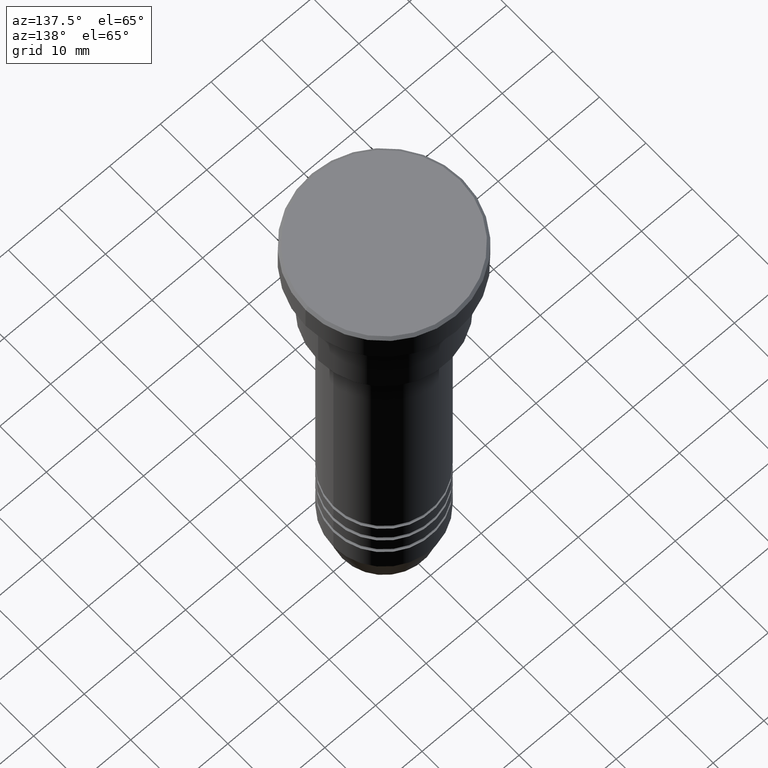
[diagram: clean part render]
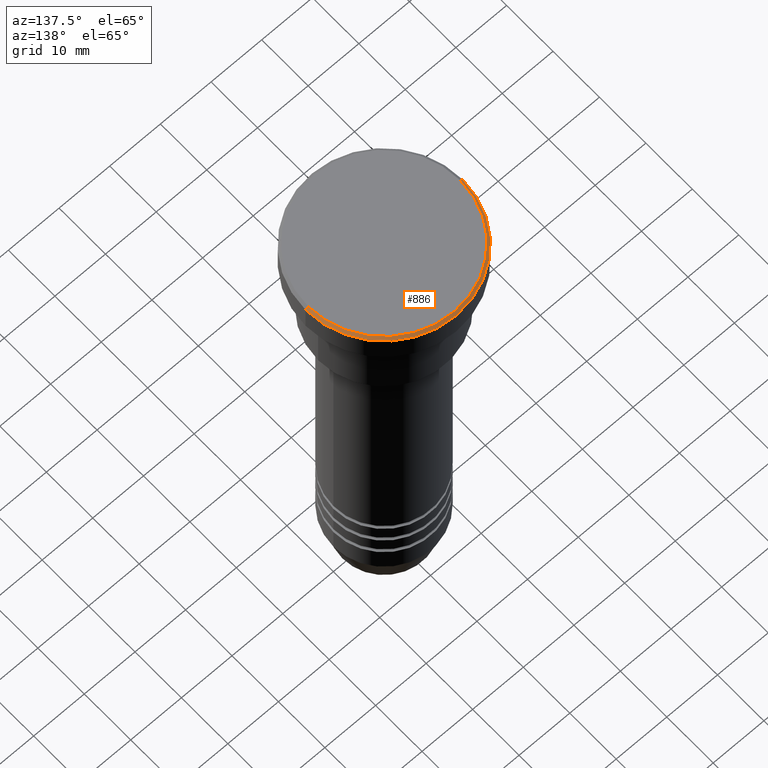
[diagram: same view with one face highlighted and labeled with its STEP entity id]
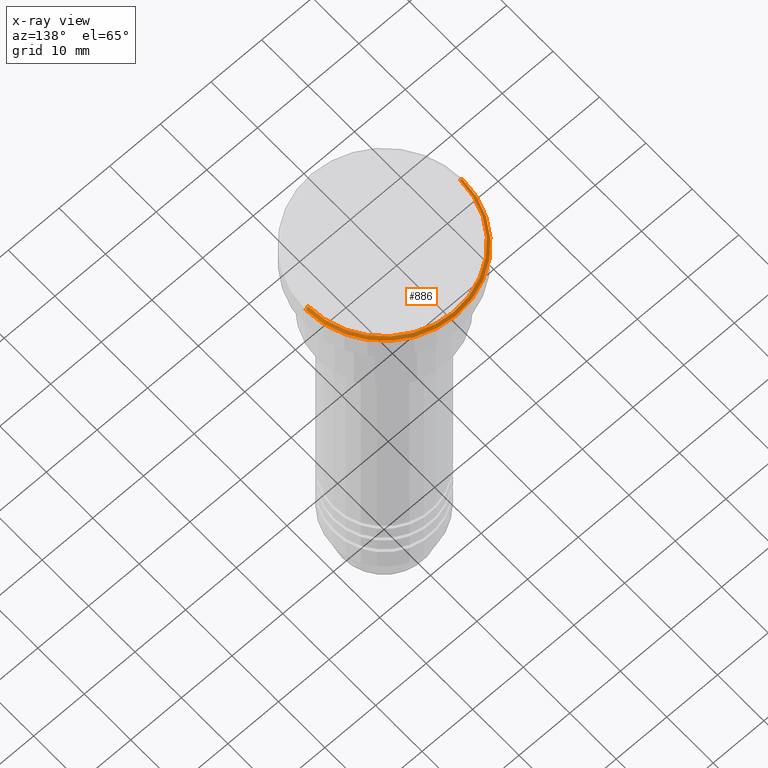
[diagram: x-ray of the same camera — body ghosted, the highlighted face saturated]
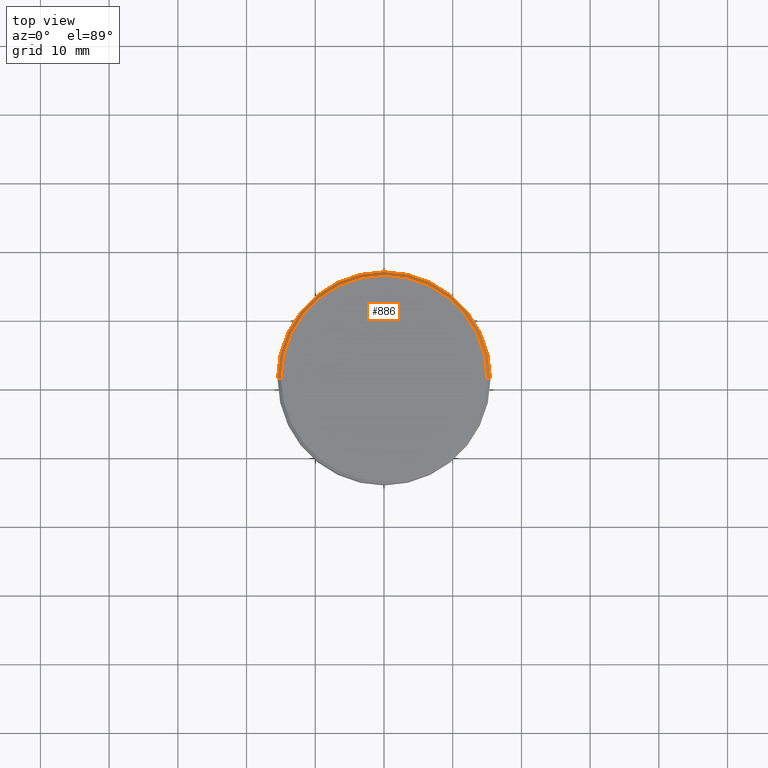
[diagram: same view with one face highlighted and labeled with its STEP entity id]
A machine part, auxiliary view. The second image highlights one B-rep face of the part: STEP entity #886.
The next image is the same camera in x-ray: the body ghosted, the highlighted face saturated — about 0% of this face is hidden behind the body in this view.
A second angle (top view) of the same face is appended — the face is thin or edge-on in the first view.
In plain terms, the highlighted conical surface has half-angle 45 deg.
Its self-contained STEP definition (entity closure, byte-faithful):
#10 = LINE ( 'NONE', #188, #403 ) ;
#43 = CONICAL_SURFACE ( 'NONE', #844, 15.00000000000001421, 0.7853981633974361776 ) ;
#104 = DIRECTION ( 'NONE',  ( -1.000000000000000000, 0.000000000000000000, 0.000000000000000000 ) ) ;
#105 = EDGE_LOOP ( 'NONE', ( #935, #984, #241, #706 ) ) ;
#107 = CARTESIAN_POINT ( 'NONE',  ( -15.50000000000000000, 1.898202538678397557E-15, -0.4999999999999987232 ) ) ;
#119 = CIRCLE ( 'NONE', #443, 15.50000000000000000 ) ;
#121 = VERTEX_POINT ( 'NONE', #217 ) ;
#188 = CARTESIAN_POINT ( 'NONE',  ( 15.00000000000001421, 1.836970198721031561E-15, 0.000000000000000000 ) ) ;
#217 = CARTESIAN_POINT ( 'NONE',  ( 15.50000000000000000, 0.000000000000000000, -0.4999999999999987232 ) ) ;
#241 = ORIENTED_EDGE ( 'NONE', *, *, #809, .F. ) ;
#254 = VECTOR ( 'NONE', #750, 1000.000000000000000 ) ;
#270 = DIRECTION ( 'NONE',  ( 1.000000000000000000, 0.000000000000000000, 0.000000000000000000 ) ) ;
#291 = DIRECTION ( 'NONE',  ( 0.000000000000000000, 0.000000000000000000, -1.000000000000000000 ) ) ;
#293 = EDGE_CURVE ( 'NONE', #384, #562, #308, .T. ) ;
#308 = CIRCLE ( 'NONE', #329, 15.00000000000001421 ) ;
#317 = CARTESIAN_POINT ( 'NONE',  ( 15.00000000000001421, 1.867586368699714559E-15, 0.000000000000000000 ) ) ;
#321 = CARTESIAN_POINT ( 'NONE',  ( -15.00000000000001421, 0.000000000000000000, 0.000000000000000000 ) ) ;
#329 = AXIS2_PLACEMENT_3D ( 'NONE', #423, #791, #724 ) ;
#377 = DIRECTION ( 'NONE',  ( 0.7071067811865389130, 8.659560562354828088E-17, -0.7071067811865561215 ) ) ;
#384 = VERTEX_POINT ( 'NONE', #317 ) ;
#389 = CARTESIAN_POINT ( 'NONE',  ( 0.000000000000000000, 0.000000000000000000, 0.000000000000000000 ) ) ;
#403 = VECTOR ( 'NONE', #377, 1000.000000000000000 ) ;
#423 = CARTESIAN_POINT ( 'NONE',  ( 0.000000000000000000, 0.000000000000000000, 0.000000000000000000 ) ) ;
#429 = EDGE_CURVE ( 'NONE', #384, #121, #10, .T. ) ;
#443 = AXIS2_PLACEMENT_3D ( 'NONE', #484, #291, #270 ) ;
#484 = CARTESIAN_POINT ( 'NONE',  ( 0.000000000000000000, 0.000000000000000000, -0.4999999999999987232 ) ) ;
#562 = VERTEX_POINT ( 'NONE', #321 ) ;
#566 = DIRECTION ( 'NONE',  ( 0.000000000000000000, 0.000000000000000000, -1.000000000000000000 ) ) ;
#706 = ORIENTED_EDGE ( 'NONE', *, *, #833, .F. ) ;
#724 = DIRECTION ( 'NONE',  ( 1.000000000000000000, 0.000000000000000000, 0.000000000000000000 ) ) ;
#750 = DIRECTION ( 'NONE',  ( -0.7071067811865389130, 0.000000000000000000, -0.7071067811865561215 ) ) ;
#765 = CARTESIAN_POINT ( 'NONE',  ( -15.00000000000001421, 0.000000000000000000, 0.000000000000000000 ) ) ;
#781 = VERTEX_POINT ( 'NONE', #107 ) ;
#791 = DIRECTION ( 'NONE',  ( -0.000000000000000000, -0.000000000000000000, 1.000000000000000000 ) ) ;
#809 = EDGE_CURVE ( 'NONE', #781, #121, #119, .T. ) ;
#833 = EDGE_CURVE ( 'NONE', #562, #781, #926, .T. ) ;
#844 = AXIS2_PLACEMENT_3D ( 'NONE', #389, #566, #104 ) ;
#886 = ADVANCED_FACE ( 'NONE', ( #1030 ), #43, .T. ) ;
#926 = LINE ( 'NONE', #765, #254 ) ;
#935 = ORIENTED_EDGE ( 'NONE', *, *, #293, .F. ) ;
#984 = ORIENTED_EDGE ( 'NONE', *, *, #429, .T. ) ;
#1030 = FACE_OUTER_BOUND ( 'NONE', #105, .T. ) ;